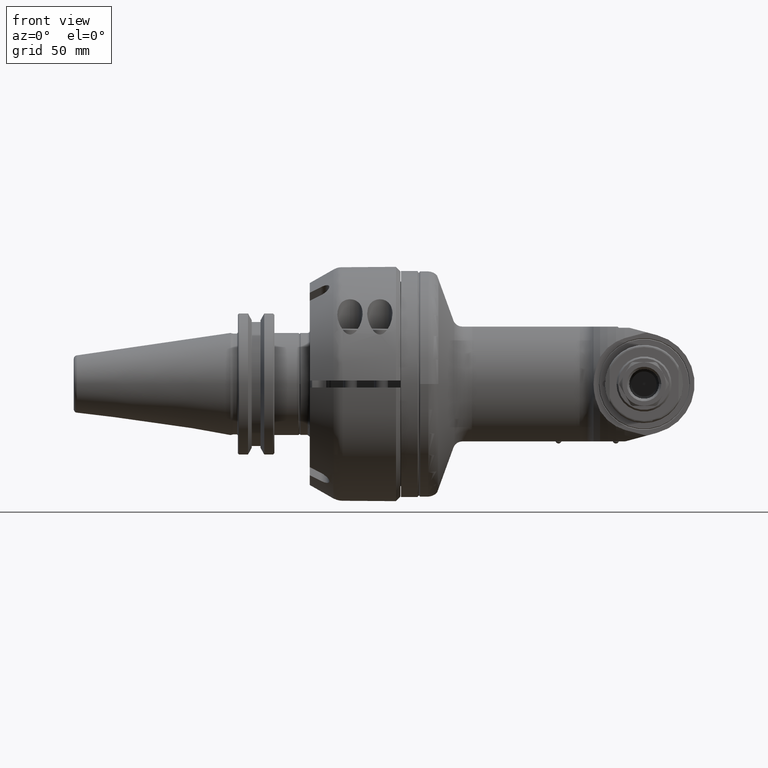
[diagram: clean part render]
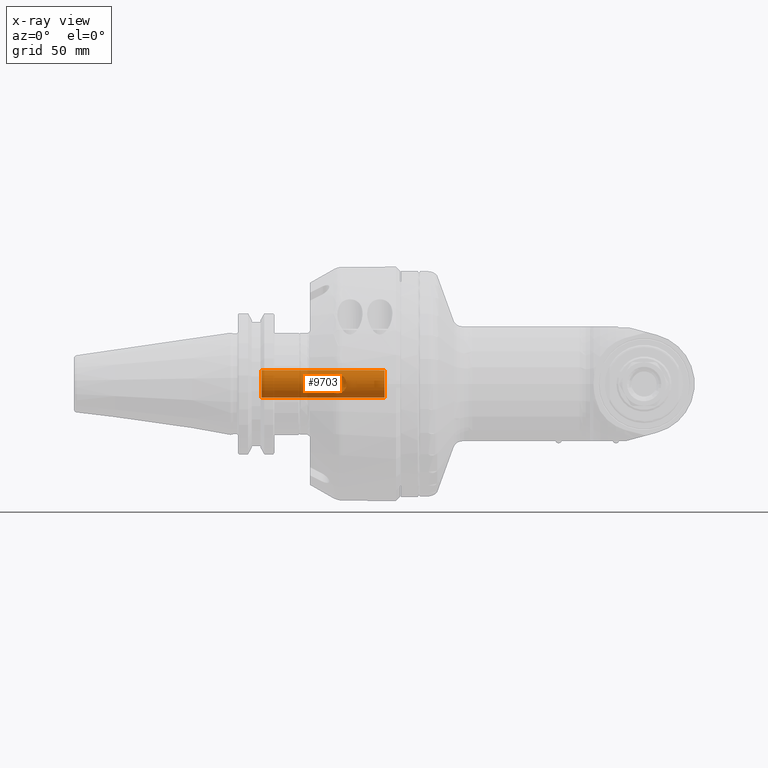
[diagram: x-ray — body ghosted, one internal face saturated and labeled with its STEP entity id]
A machine part, front view, then the same camera in x-ray: the body is ghosted and one INTERNAL B-rep face — a face not visible from any outside direction — is saturated and labeled: STEP entity #9703.
In plain terms, the highlighted cylindrical surface (bore or boss wall) has radius 6 mm, axis along (-1, -0, 0).
Its self-contained STEP definition (entity closure, byte-faithful):
#124=B_SPLINE_CURVE_WITH_KNOTS('',3,(#17073,#17074,#17075,#17076,#17077,
#17078,#17079,#17080,#17081,#17082,#17083,#17084,#17085,#17086,#17087,#17088,
#17089,#17090),.UNSPECIFIED.,.F.,.F.,(4,2,2,2,2,2,2,2,4),(0.62777148553307,
0.783846287513086,0.939921089493101,1.09773203027962,1.25554297106614,1.41335391185266,
1.57116485263918,1.72723965461919,1.88331445659921),.UNSPECIFIED.);
#125=B_SPLINE_CURVE_WITH_KNOTS('',3,(#17092,#17093,#17094,#17095,#17096,
#17097,#17098,#17099,#17100,#17101,#17102,#17103,#17104,#17105,#17106,#17107,
#17108,#17109,#17110),.UNSPECIFIED.,.F.,.F.,(4,2,2,2,3,2,2,2,4),(1.88331445659921,
2.03938925857923,2.19546406055924,2.35327500134576,2.51108594213228,2.6688968829188,
2.82670782370532,2.98278262568533,3.13885742766535),.UNSPECIFIED.);
#1112=LINE('',#17071,#1737);
#1113=LINE('',#17091,#1738);
#1737=VECTOR('',#13311,6.);
#1738=VECTOR('',#13312,6.);
#1991=CYLINDRICAL_SURFACE('',#10782,6.);
#2488=FACE_OUTER_BOUND('',#3171,.T.);
#3171=EDGE_LOOP('',(#8384,#8385,#8386,#8387,#8388,#8389,#8390,#8391,#8392));
#3727=CIRCLE('',#10780,6.);
#3729=CIRCLE('',#10783,6.);
#3730=CIRCLE('',#10784,6.);
#4563=VERTEX_POINT('',#17062);
#4565=VERTEX_POINT('',#17067);
#4566=VERTEX_POINT('',#17068);
#4567=VERTEX_POINT('',#17070);
#4568=VERTEX_POINT('',#17072);
#5872=EDGE_CURVE('',#4563,#4563,#3727,.T.);
#5874=EDGE_CURVE('',#4565,#4566,#3729,.T.);
#5875=EDGE_CURVE('',#4565,#4567,#1112,.T.);
#5876=EDGE_CURVE('',#4568,#4567,#124,.T.);
#5877=EDGE_CURVE('',#4568,#4563,#1113,.T.);
#5878=EDGE_CURVE('',#4567,#4568,#125,.T.);
#5879=EDGE_CURVE('',#4566,#4565,#3730,.T.);
#8384=ORIENTED_EDGE('',*,*,#5874,.F.);
#8385=ORIENTED_EDGE('',*,*,#5875,.T.);
#8386=ORIENTED_EDGE('',*,*,#5876,.F.);
#8387=ORIENTED_EDGE('',*,*,#5877,.T.);
#8388=ORIENTED_EDGE('',*,*,#5872,.F.);
#8389=ORIENTED_EDGE('',*,*,#5877,.F.);
#8390=ORIENTED_EDGE('',*,*,#5878,.F.);
#8391=ORIENTED_EDGE('',*,*,#5875,.F.);
#8392=ORIENTED_EDGE('',*,*,#5879,.F.);
#9703=ADVANCED_FACE('',(#2488),#1991,.T.);
#10780=AXIS2_PLACEMENT_3D('',#17063,#13303,#13304);
#10782=AXIS2_PLACEMENT_3D('',#17066,#13307,#13308);
#10783=AXIS2_PLACEMENT_3D('',#17069,#13309,#13310);
#10784=AXIS2_PLACEMENT_3D('',#17111,#13313,#13314);
#13303=DIRECTION('center_axis',(1.,0.,0.));
#13304=DIRECTION('ref_axis',(0.,-1.,0.));
#13307=DIRECTION('center_axis',(-1.,0.,0.));
#13308=DIRECTION('ref_axis',(0.,1.,0.));
#13309=DIRECTION('center_axis',(-1.,0.,0.));
#13310=DIRECTION('ref_axis',(0.,1.,0.));
#13311=DIRECTION('',(1.,0.,0.));
#13312=DIRECTION('',(1.,0.,0.));
#13313=DIRECTION('center_axis',(-1.,0.,0.));
#13314=DIRECTION('ref_axis',(0.,1.,0.));
#17062=CARTESIAN_POINT('',(-19.,59.,0.));
#17063=CARTESIAN_POINT('Origin',(-19.,65.,0.));
#17066=CARTESIAN_POINT('Origin',(5.00000250596,65.,0.));
#17067=CARTESIAN_POINT('',(-72.5,59.,0.));
#17068=CARTESIAN_POINT('',(-72.499999999999,65.,5.999999999999));
#17069=CARTESIAN_POINT('Origin',(-72.5,65.,0.));
#17070=CARTESIAN_POINT('',(-43.5,59.,6.44949795900495E-16));
#17071=CARTESIAN_POINT('',(5.00000250596,59.,7.34788079488412E-16));
#17072=CARTESIAN_POINT('',(-35.5,59.,0.));
#17073=CARTESIAN_POINT('Ctrl Pts',(-35.5,59.,6.93889390390723E-16));
#17074=CARTESIAN_POINT('Ctrl Pts',(-35.5,59.,0.520249339933387));
#17075=CARTESIAN_POINT('Ctrl Pts',(-35.6075109371939,59.0732861795248,1.06408494730268));
#17076=CARTESIAN_POINT('Ctrl Pts',(-36.0216353424459,59.336654089527,2.04566028873394));
#17077=CARTESIAN_POINT('Ctrl Pts',(-36.3274602819515,59.5245614597835,2.48431453144388));
#17078=CARTESIAN_POINT('Ctrl Pts',(-37.0195132948257,59.8944793551634,3.17636754431808));
#17079=CARTESIAN_POINT('Ctrl Pts',(-37.4573329820069,60.1051049221371,3.47966275670567));
#17080=CARTESIAN_POINT('Ctrl Pts',(-38.4333640795862,60.4255886215837,3.8913775523215));
#17081=CARTESIAN_POINT('Ctrl Pts',(-38.9739635307116,60.5278640450004,4.));
#17082=CARTESIAN_POINT('Ctrl Pts',(-40.0260364692884,60.5278640450004,4.));
#17083=CARTESIAN_POINT('Ctrl Pts',(-40.5666359204138,60.4255886215837,3.8913775523215));
#17084=CARTESIAN_POINT('Ctrl Pts',(-41.5426670179931,60.1051049221371,3.47966275670567));
#17085=CARTESIAN_POINT('Ctrl Pts',(-41.9804867051743,59.8944793551634,3.17636754431808));
#17086=CARTESIAN_POINT('Ctrl Pts',(-42.6725397180485,59.5245614597835,2.48431453144388));
#17087=CARTESIAN_POINT('Ctrl Pts',(-42.9783646575541,59.336654089527,2.04566028873394));
#17088=CARTESIAN_POINT('Ctrl Pts',(-43.3924890628061,59.0732861795248,1.06408494730268));
#17089=CARTESIAN_POINT('Ctrl Pts',(-43.5,59.,0.520249339933385));
#17090=CARTESIAN_POINT('Ctrl Pts',(-43.5,59.,-6.93889390390723E-16));
#17091=CARTESIAN_POINT('',(5.00000250596,59.,7.34788079488412E-16));
#17092=CARTESIAN_POINT('Ctrl Pts',(-43.5,59.,5.55111512312578E-16));
#17093=CARTESIAN_POINT('Ctrl Pts',(-43.5,59.,-0.520249339933386));
#17094=CARTESIAN_POINT('Ctrl Pts',(-43.3924890628061,59.0732861795248,-1.06408494730267));
#17095=CARTESIAN_POINT('Ctrl Pts',(-42.9783646575541,59.336654089527,-2.04566028873394));
#17096=CARTESIAN_POINT('Ctrl Pts',(-42.6725397180485,59.5245614597835,-2.48431453144388));
#17097=CARTESIAN_POINT('Ctrl Pts',(-41.9804867051743,59.8944793551634,-3.17636754431808));
#17098=CARTESIAN_POINT('Ctrl Pts',(-41.5426670179931,60.1051049221371,-3.47966275670568));
#17099=CARTESIAN_POINT('Ctrl Pts',(-40.5666359204138,60.4255886215837,-3.8913775523215));
#17100=CARTESIAN_POINT('Ctrl Pts',(-40.0260364692884,60.5278640450004,-4.));
#17101=CARTESIAN_POINT('Ctrl Pts',(-39.5,60.5278640450004,-4.));
#17102=CARTESIAN_POINT('Ctrl Pts',(-38.9739635307116,60.5278640450004,-4.));
#17103=CARTESIAN_POINT('Ctrl Pts',(-38.4333640795862,60.4255886215837,-3.8913775523215));
#17104=CARTESIAN_POINT('Ctrl Pts',(-37.4573329820069,60.1051049221371,-3.47966275670567));
#17105=CARTESIAN_POINT('Ctrl Pts',(-37.0195132948257,59.8944793551634,-3.17636754431808));
#17106=CARTESIAN_POINT('Ctrl Pts',(-36.3274602819515,59.5245614597835,-2.48431453144388));
#17107=CARTESIAN_POINT('Ctrl Pts',(-36.0216353424459,59.336654089527,-2.04566028873394));
#17108=CARTESIAN_POINT('Ctrl Pts',(-35.6075109371939,59.0732861795248,-1.06408494730267));
#17109=CARTESIAN_POINT('Ctrl Pts',(-35.5,59.,-0.520249339933386));
#17110=CARTESIAN_POINT('Ctrl Pts',(-35.5,59.,-4.16333634234434E-16));
#17111=CARTESIAN_POINT('Origin',(-72.5,65.,0.));